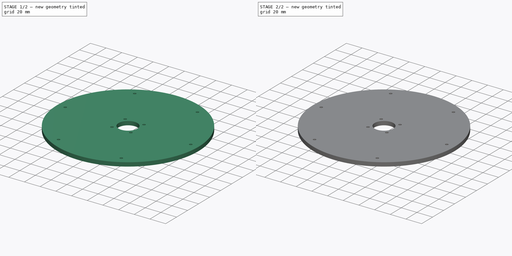
[diagram: build sequence overview — one tinted view per stage of 2, left to right]
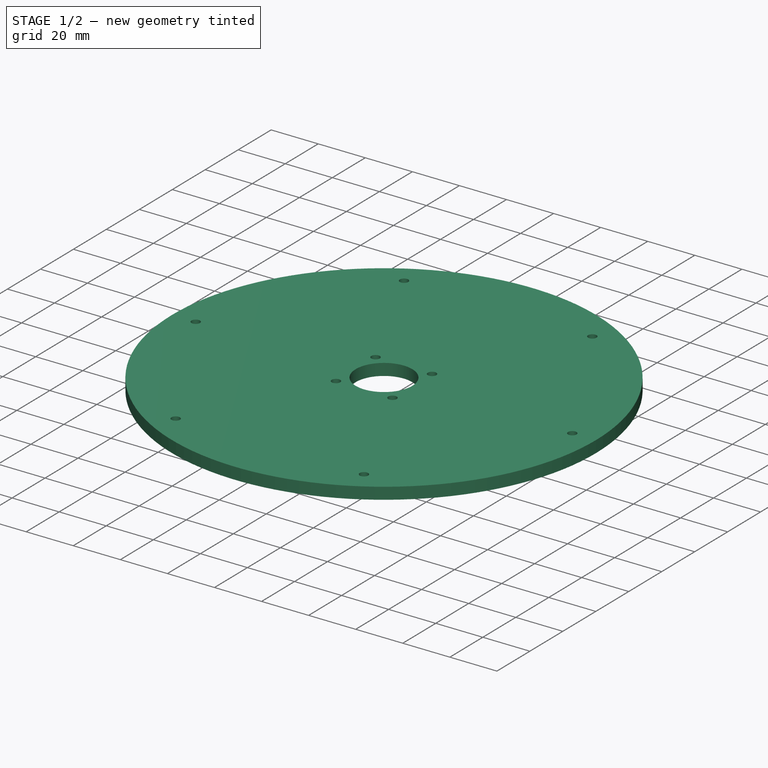
[diagram: stage 1 of 2 — iso view after this stage's code; geometry added in this stage tinted green]
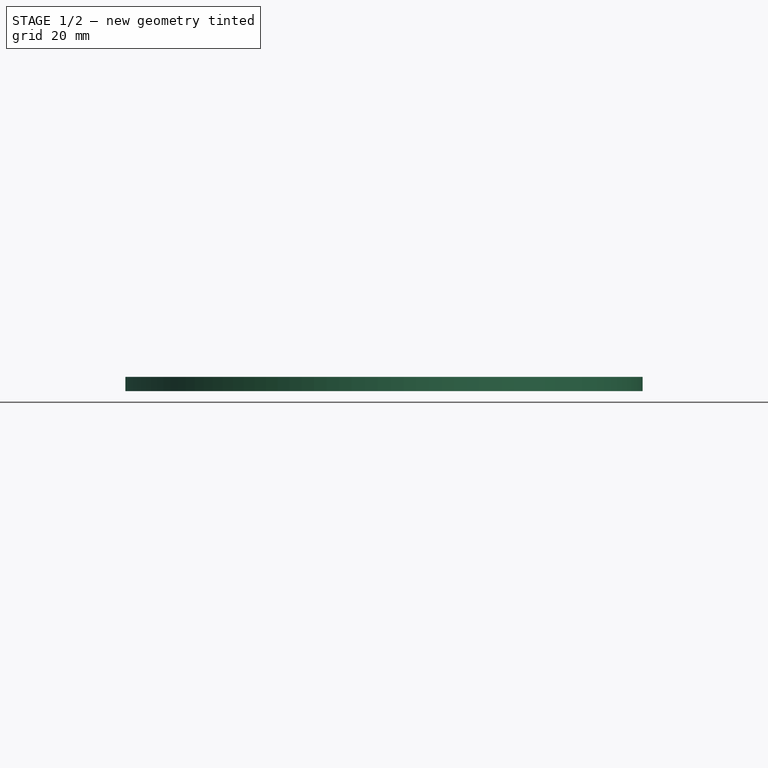
[diagram: stage 1 of 2 — front view after this stage's code; geometry added in this stage tinted green]
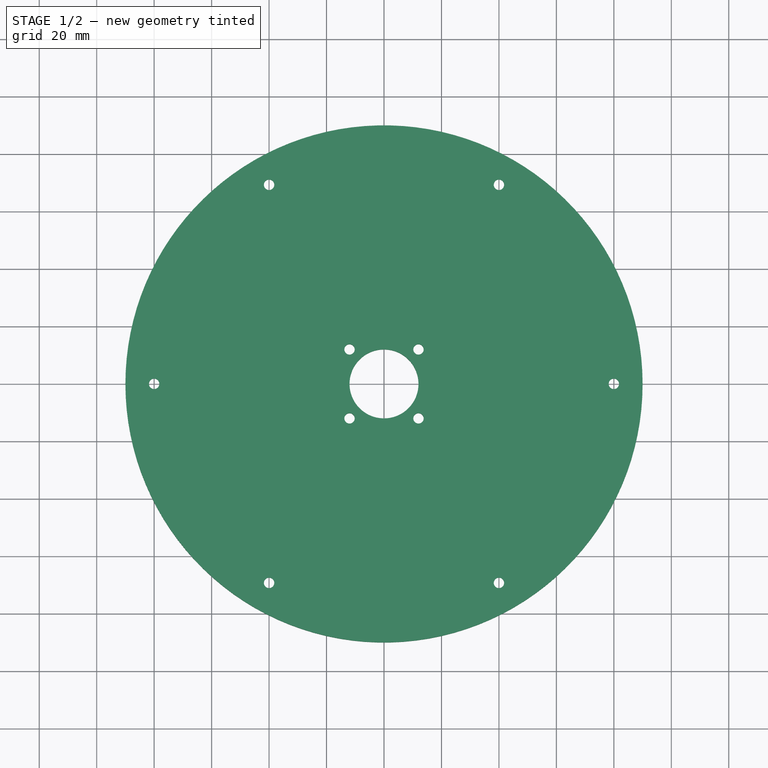
[diagram: stage 1 of 2 — top view after this stage's code; geometry added in this stage tinted green]
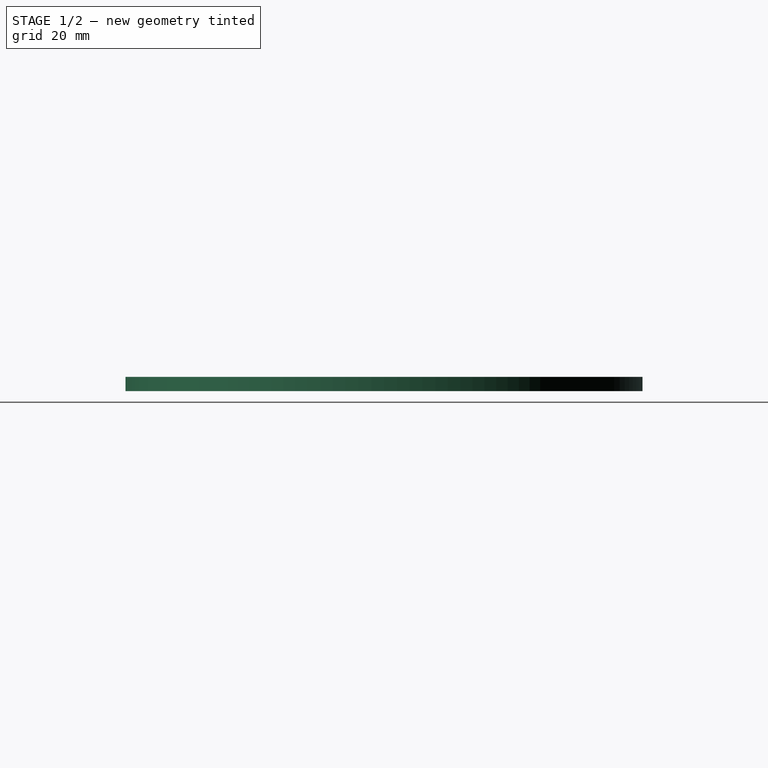
[diagram: stage 1 of 2 — right view after this stage's code; geometry added in this stage tinted green]
FCSTD DOCUMENT  (FreeCAD 0.16R6707 (Git))
Label: base
License: All rights reserved
LicenseURL: http://en.wikipedia.org/wiki/All_rights_reserved
objects: Sketcher::SketchObject×3, PartDesign::Pocket×2, PartDesign::Pad×1
note: 9 computed .brp shape members not serialized (recipe doc carries the construction recipe); baked Part::Feature solids carry a one-line shape summary decoded from their .brp

FEATURE [Sketcher::SketchObject] Sketch  label="Base"
  sketch-geometry (23):
    g0: Circle CenterX=0 CenterY=0 CenterZ=0 NormalX=0 NormalY=0 NormalZ=1 Radius=90
    g1: LineSegment [constr] StartX=40 StartY=69.282 StartZ=0 EndX=-40 EndY=69.282 EndZ=0
    g2: LineSegment [constr] StartX=-40 StartY=69.282 StartZ=0 EndX=-80 EndY=0 EndZ=0
    g3: LineSegment [constr] StartX=-80 StartY=0 StartZ=0 EndX=-40 EndY=-69.282 EndZ=0
    g4: LineSegment [constr] StartX=-40 StartY=-69.282 StartZ=0 EndX=40 EndY=-69.282 EndZ=0
    g5: LineSegment [constr] StartX=40 StartY=-69.282 StartZ=0 EndX=80 EndY=0 EndZ=0
    g6: LineSegment [constr] StartX=80 StartY=0 StartZ=0 EndX=40 EndY=69.282 EndZ=0
    g7: Circle [constr] CenterX=0 CenterY=0 CenterZ=0 NormalX=0 NormalY=0 NormalZ=1 Radius=80
    g8: Circle CenterX=-40 CenterY=69.282 CenterZ=0 NormalX=0 NormalY=0 NormalZ=1 Radius=1.8
    g9: Circle CenterX=40 CenterY=69.282 CenterZ=0 NormalX=0 NormalY=0 NormalZ=1 Radius=1.8
    g10: Circle CenterX=80 CenterY=0 CenterZ=0 NormalX=0 NormalY=0 NormalZ=1 Radius=1.8
    g11: Circle CenterX=40 CenterY=-69.282 CenterZ=0 NormalX=0 NormalY=0 NormalZ=1 Radius=1.8
    g12: Circle CenterX=-40 CenterY=-69.282 CenterZ=0 NormalX=0 NormalY=0 NormalZ=1 Radius=1.8
    g13: Circle CenterX=-80 CenterY=0 CenterZ=0 NormalX=0 NormalY=0 NormalZ=1 Radius=1.8
    g14: Circle CenterX=0 CenterY=0 CenterZ=0 NormalX=0 NormalY=0 NormalZ=1 Radius=12
    g15: LineSegment [constr] StartX=-12 StartY=12 StartZ=0 EndX=12 EndY=12 EndZ=0
    g16: LineSegment [constr] StartX=12 StartY=12 StartZ=0 EndX=12 EndY=-12 EndZ=0
    g17: LineSegment [constr] StartX=12 StartY=-12 StartZ=0 EndX=-12 EndY=-12 EndZ=0
    g18: LineSegment [constr] StartX=-12 StartY=-12 StartZ=0 EndX=-12 EndY=12 EndZ=0
    g19: Circle CenterX=-12 CenterY=12 CenterZ=0 NormalX=0 NormalY=0 NormalZ=1 Radius=1.8
    g20: Circle CenterX=12 CenterY=12 CenterZ=0 NormalX=0 NormalY=0 NormalZ=1 Radius=1.8
    g21: Circle CenterX=12 CenterY=-12 CenterZ=0 NormalX=0 NormalY=0 NormalZ=1 Radius=1.8
    g22: Circle CenterX=-12 CenterY=-12 CenterZ=0 NormalX=0 NormalY=0 NormalZ=1 Radius=1.8
  constraints (52):
    c: Coincident(g0,g-1)
    c: Radius(g0) = 90
    c: Coincident(g1,g2)
    c: Coincident(g2,g3)
    c: Coincident(g3,g4)
    c: Coincident(g4,g5)
    c: Coincident(g5,g6)
    c: Coincident(g6,g1)
    c: Equal(g1, g2-g6) x5
    c: PointOnObject(g1,g7)
    c: PointOnObject(g2,g7)
    c: PointOnObject(g3,g7)
    c: PointOnObject(g4,g7)
    c: PointOnObject(g5,g7)
    c: PointOnObject(g6,g7)
    c: Coincident(g7,g-1)
    c: PointOnObject(g5,g-1)
    c: Radius(g7) = 80
    c: Coincident(g8,g1)
    c: Coincident(g9,g1)
    c: Coincident(g10,g5)
    c: Coincident(g11,g4)
    c: Coincident(g12,g3)
    c: Coincident(g13,g2)
    c: Radius(g8) = 1.8
    c: Equal(g8,g9)
    c: Equal(g9,g10)
    c: Equal(g10,g11)
    c: Equal(g11,g12)
    c: Equal(g12,g13)
    c: Coincident(g14,g-1)
    c: Radius(g14) = 12
    c: Coincident(g15,g16)
    c: Coincident(g16,g17)
    c: Coincident(g17,g18)
    c: Coincident(g18,g15)
    c: Horizontal(g15)
    c: Horizontal(g17)
    c: Vertical(g16)
    c: Vertical(g18)
    c: Symmetric(g15,g15,g-2)
    c: Symmetric(g15,g17,g-1)
    c: Equal(g18,g15)
    c: DistanceX(g15,g15) = 24
    c: Coincident(g19,g15)
    c: Coincident(g20,g15)
    c: Coincident(g21,g16)
    c: Coincident(g22,g17)
    c: Equal(g8,g19)
    c: Equal(g19,g20)
    c: Equal(g20,g21)
    c: Equal(g21,g22)
FEATURE [PartDesign::Pad] Pad
  Length = 5
  Length2 = 100
  Sketch = -> Sketch
  Type = 0
FEATURE [Sketcher::SketchObject] Sketch001  label="Washers"
  Placement = pos=(0,0,0) rot=(1,0,0;3.14159rad)
  Support = -> Pad [Face13]
  sketch-geometry (13):
    g0: LineSegment [constr] StartX=40 StartY=69.282 StartZ=0 EndX=-40 EndY=69.282 EndZ=0
    g1: LineSegment [constr] StartX=-40 StartY=69.282 StartZ=0 EndX=-80 EndY=0 EndZ=0
    g2: LineSegment [constr] StartX=-80 StartY=0 StartZ=0 EndX=-40 EndY=-69.282 EndZ=0
    g3: LineSegment [constr] StartX=-40 StartY=-69.282 StartZ=0 EndX=40 EndY=-69.282 EndZ=0
    g4: LineSegment [constr] StartX=40 StartY=-69.282 StartZ=0 EndX=80 EndY=0 EndZ=0
    g5: LineSegment [constr] StartX=80 StartY=0 StartZ=0 EndX=40 EndY=69.282 EndZ=0
    g6: Circle [constr] CenterX=0 CenterY=0 CenterZ=0 NormalX=0 NormalY=0 NormalZ=1 Radius=80
    g7: Circle CenterX=-40 CenterY=69.282 CenterZ=0 NormalX=0 NormalY=0 NormalZ=1 Radius=4.25
    g8: Circle CenterX=40 CenterY=69.282 CenterZ=0 NormalX=0 NormalY=0 NormalZ=1 Radius=4.25
    g9: Circle CenterX=80 CenterY=0 CenterZ=0 NormalX=0 NormalY=0 NormalZ=1 Radius=4.25
    g10: Circle CenterX=40 CenterY=-69.282 CenterZ=0 NormalX=0 NormalY=0 NormalZ=1 Radius=4.25
    g11: Circle CenterX=-40 CenterY=-69.282 CenterZ=0 NormalX=0 NormalY=0 NormalZ=1 Radius=4.25
    g12: Circle CenterX=-80 CenterY=0 CenterZ=0 NormalX=0 NormalY=0 NormalZ=1 Radius=4.25
  constraints (28):
    c: Coincident(g0,g1)
    c: Coincident(g1,g2)
    c: Coincident(g2,g3)
    c: Coincident(g3,g4)
    c: Coincident(g4,g5)
    c: Coincident(g5,g0)
    c: Equal(g0, g1-g5) x5
    c: PointOnObject(g0,g6)
    c: PointOnObject(g1,g6)
    c: PointOnObject(g2,g6)
    c: PointOnObject(g3,g6)
    c: PointOnObject(g4,g6)
    c: PointOnObject(g5,g6)
    c: PointOnObject(g4,g-1)
    c: Radius(g6) = 80
    c: Coincident(g7,g0)
    c: Coincident(g8,g0)
    c: Coincident(g9,g4)
    c: Coincident(g10,g3)
    c: Coincident(g11,g2)
    c: Coincident(g12,g1)
    c: Radius(g7) = 4.25
    c: Equal(g7,g8)
    c: Equal(g8,g9)
    c: Equal(g9,g10)
    c: Equal(g10,g11)
    c: Equal(g11,g12)
    c: Coincident(g6,g-1)
FEATURE [PartDesign::Pocket] Pocket
  Length = 3
  Sketch = -> Sketch001
  Type = 0
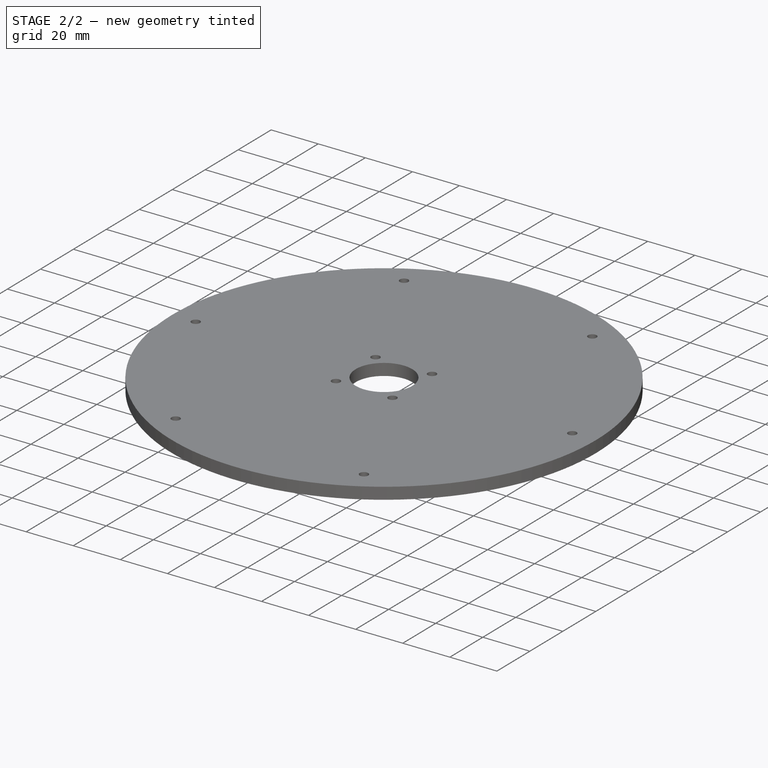
[diagram: stage 2 of 2 — iso view after this stage's code; geometry added in this stage tinted green]
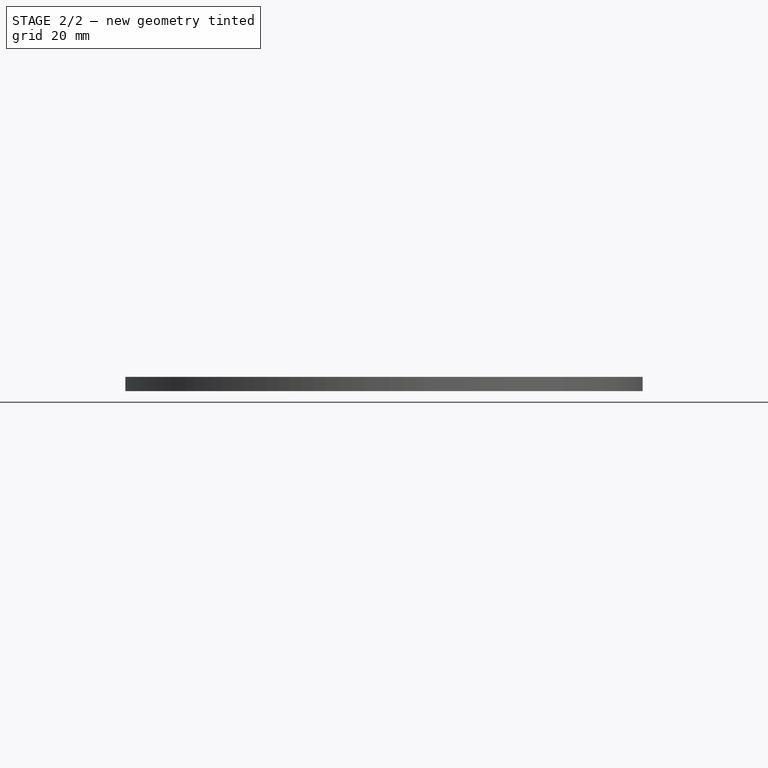
[diagram: stage 2 of 2 — front view after this stage's code; geometry added in this stage tinted green]
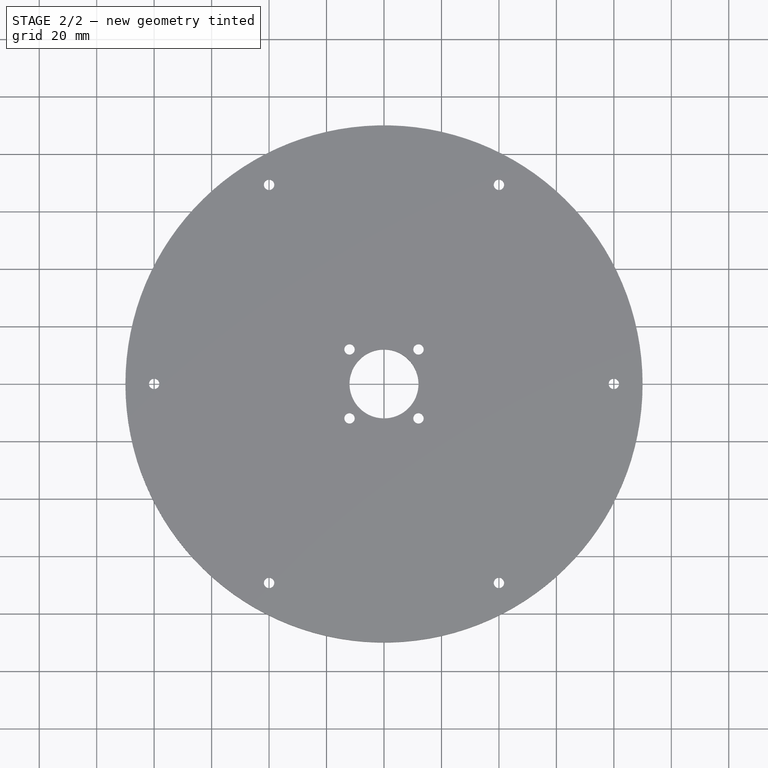
[diagram: stage 2 of 2 — top view after this stage's code; geometry added in this stage tinted green]
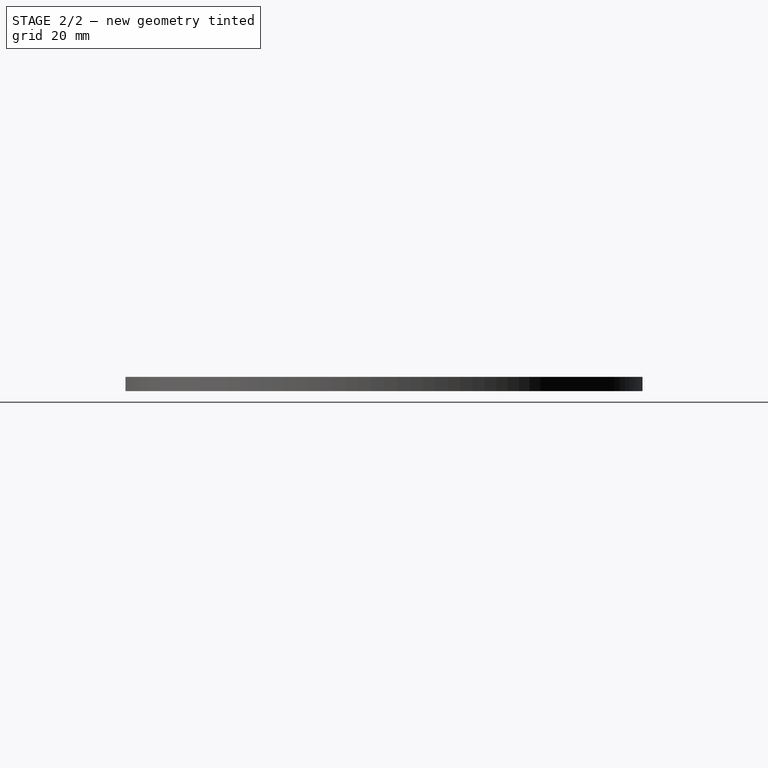
[diagram: stage 2 of 2 — right view after this stage's code; geometry added in this stage tinted green]
FEATURE [Sketcher::SketchObject] Sketch002  label="Motor Nuts"
  Placement = pos=(0,0,0) rot=(1,0,0;3.14159rad)
  Support = -> Pocket [Face2]
  sketch-geometry (32):
    g0: LineSegment [constr] StartX=-12 StartY=12 StartZ=0 EndX=12 EndY=12 EndZ=0
    g1: LineSegment [constr] StartX=12 StartY=12 StartZ=0 EndX=12 EndY=-12 EndZ=0
    g2: LineSegment [constr] StartX=12 StartY=-12 StartZ=0 EndX=-12 EndY=-12 EndZ=0
    g3: LineSegment [constr] StartX=-12 StartY=-12 StartZ=0 EndX=-12 EndY=12 EndZ=0
    g4: LineSegment StartX=-8.84501 StartY=11.2199 StartZ=0 EndX=-9.74692 EndY=14.3422 EndZ=0
    g5: LineSegment StartX=-9.74692 StartY=14.3422 StartZ=0 EndX=-12.9019 EndY=15.1224 EndZ=0
    g6: LineSegment StartX=-12.9019 StartY=15.1224 StartZ=0 EndX=-15.155 EndY=12.7801 EndZ=0
    g7: LineSegment StartX=-15.155 StartY=12.7801 StartZ=0 EndX=-14.2531 EndY=9.65776 EndZ=0
    g8: LineSegment StartX=-14.2531 StartY=9.65776 StartZ=0 EndX=-11.0981 EndY=8.87765 EndZ=0
    g9: LineSegment StartX=-11.0981 StartY=8.87765 StartZ=0 EndX=-8.84501 EndY=11.2199 EndZ=0
    g10: Circle [constr] CenterX=-12 CenterY=12 CenterZ=0 NormalX=0 NormalY=0 NormalZ=1 Radius=3.25
    g11: LineSegment StartX=14.2531 StartY=9.65776 StartZ=0 EndX=15.155 EndY=12.7801 EndZ=0
    g12: LineSegment StartX=15.155 StartY=12.7801 StartZ=0 EndX=12.9019 EndY=15.1224 EndZ=0
    g13: LineSegment StartX=12.9019 StartY=15.1224 StartZ=0 EndX=9.74692 EndY=14.3422 EndZ=0
    g14: LineSegment StartX=9.74692 StartY=14.3422 StartZ=0 EndX=8.84501 EndY=11.2199 EndZ=0
    g15: LineSegment StartX=8.84501 StartY=11.2199 StartZ=0 EndX=11.0981 EndY=8.87765 EndZ=0
    g16: LineSegment StartX=11.0981 StartY=8.87765 StartZ=0 EndX=14.2531 EndY=9.65776 EndZ=0
    g17: Circle [constr] CenterX=12 CenterY=12 CenterZ=0 NormalX=0 NormalY=0 NormalZ=1 Radius=3.25
    g18: LineSegment StartX=12.9019 StartY=-15.1224 StartZ=0 EndX=15.155 EndY=-12.7801 EndZ=0
    g19: LineSegment StartX=15.155 StartY=-12.7801 StartZ=0 EndX=14.2531 EndY=-9.65776 EndZ=0
    g20: LineSegment StartX=14.2531 StartY=-9.65776 StartZ=0 EndX=11.0981 EndY=-8.87765 EndZ=0
    g21: LineSegment StartX=11.0981 StartY=-8.87765 StartZ=0 EndX=8.84501 EndY=-11.2199 EndZ=0
    g22: LineSegment StartX=8.84501 StartY=-11.2199 StartZ=0 EndX=9.74692 EndY=-14.3422 EndZ=0
    g23: LineSegment StartX=9.74692 StartY=-14.3422 StartZ=0 EndX=12.9019 EndY=-15.1224 EndZ=0
    g24: Circle [constr] CenterX=12 CenterY=-12 CenterZ=0 NormalX=0 NormalY=0 NormalZ=1 Radius=3.25
    g25: LineSegment StartX=-9.74692 StartY=-14.3422 StartZ=0 EndX=-8.84501 EndY=-11.2199 EndZ=0
    g26: LineSegment StartX=-8.84501 StartY=-11.2199 StartZ=0 EndX=-11.0981 EndY=-8.87765 EndZ=0
    g27: LineSegment StartX=-11.0981 StartY=-8.87765 StartZ=0 EndX=-14.2531 EndY=-9.65776 EndZ=0
    g28: LineSegment StartX=-14.2531 StartY=-9.65776 StartZ=0 EndX=-15.155 EndY=-12.7801 EndZ=0
    g29: LineSegment StartX=-15.155 StartY=-12.7801 StartZ=0 EndX=-12.9019 EndY=-15.1224 EndZ=0
    g30: LineSegment StartX=-12.9019 StartY=-15.1224 StartZ=0 EndX=-9.74692 EndY=-14.3422 EndZ=0
    g31: Circle [constr] CenterX=-12 CenterY=-12 CenterZ=0 NormalX=0 NormalY=0 NormalZ=1 Radius=3.25
  constraints (72):
    c: Coincident(g0,g1)
    c: Coincident(g1,g2)
    c: Coincident(g2,g3)
    c: Coincident(g3,g0)
    c: Horizontal(g2)
    c: Vertical(g1)
    c: Vertical(g3)
    c: Symmetric(g0,g0,g-2)
    c: Symmetric(g0,g2,g-1)
    c: Equal(g3,g0)
    c: DistanceX(g0,g0) = 24
    c: Coincident(g4,g5)
    c: Coincident(g5,g6)
    c: Coincident(g6,g7)
    c: Coincident(g7,g8)
    c: Coincident(g8,g9)
    c: Coincident(g9,g4)
    c: Equal(g4, g5-g9) x5
    c: PointOnObject(g4,g10)
    c: PointOnObject(g5,g10)
    c: PointOnObject(g6,g10)
    c: PointOnObject(g7,g10)
    c: PointOnObject(g8,g10)
    c: PointOnObject(g9,g10)
    c: Coincident(g10,g0)
    c: Radius(g10) = 3.25
    c: Coincident(g11,g12)
    c: Coincident(g12,g13)
    c: Coincident(g13,g14)
    c: Coincident(g14,g15)
    c: Coincident(g15,g16)
    c: Coincident(g16,g11)
    c: Equal(g11, g12-g16) x5
    c: PointOnObject(g11,g17)
    c: PointOnObject(g12,g17)
    c: PointOnObject(g13,g17)
    c: PointOnObject(g14,g17)
    c: PointOnObject(g15,g17)
    c: PointOnObject(g16,g17)
    c: Coincident(g17,g0)
    c: Coincident(g18,g19)
    c: Coincident(g19,g20)
    c: Coincident(g20,g21)
    c: Coincident(g21,g22)
    c: Coincident(g22,g23)
    c: Coincident(g23,g18)
    c: Equal(g18, g19-g23) x5
    c: PointOnObject(g18,g24)
    c: PointOnObject(g19,g24)
    c: PointOnObject(g20,g24)
    c: PointOnObject(g21,g24)
    c: PointOnObject(g22,g24)
    c: PointOnObject(g23,g24)
    c: Coincident(g24,g1)
    c: Coincident(g25,g26)
    c: Coincident(g26,g27)
    c: Coincident(g27,g28)
    c: Coincident(g28,g29)
    c: Coincident(g29,g30)
    c: Coincident(g30,g25)
    c: Equal(g25, g26-g30) x5
    c: PointOnObject(g25,g31)
    c: PointOnObject(g26,g31)
    c: PointOnObject(g27,g31)
    c: PointOnObject(g28,g31)
    c: PointOnObject(g29,g31)
    c: PointOnObject(g30,g31)
    c: Coincident(g31,g2)
    c: Equal(g24,g31)
    c: Symmetric(g4,g14,g-2)
    c: Symmetric(g15,g20,g-1)
    c: Symmetric(g8,g26,g-1)
FEATURE [PartDesign::Pocket] Pocket001
  Length = 3
  Sketch = -> Sketch002
  Type = 0
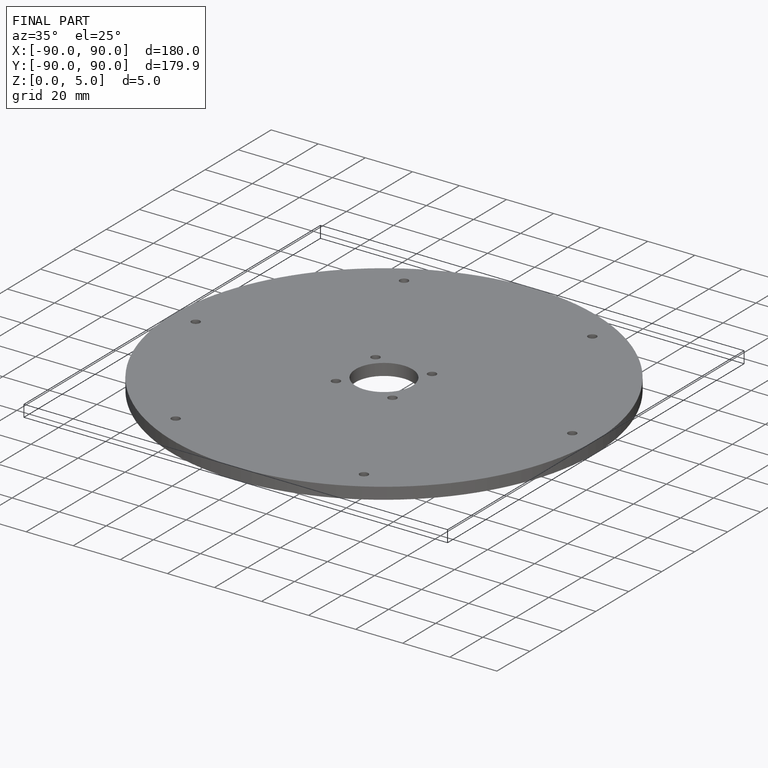
[diagram: finished part — iso view with bounding-box wireframe]
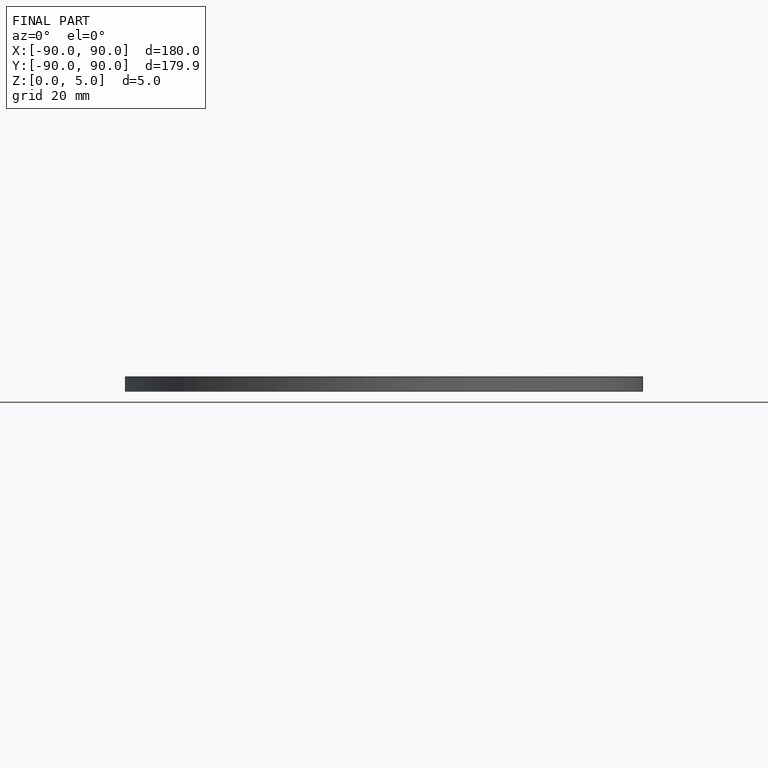
[diagram: finished part — front view with bounding-box wireframe]
